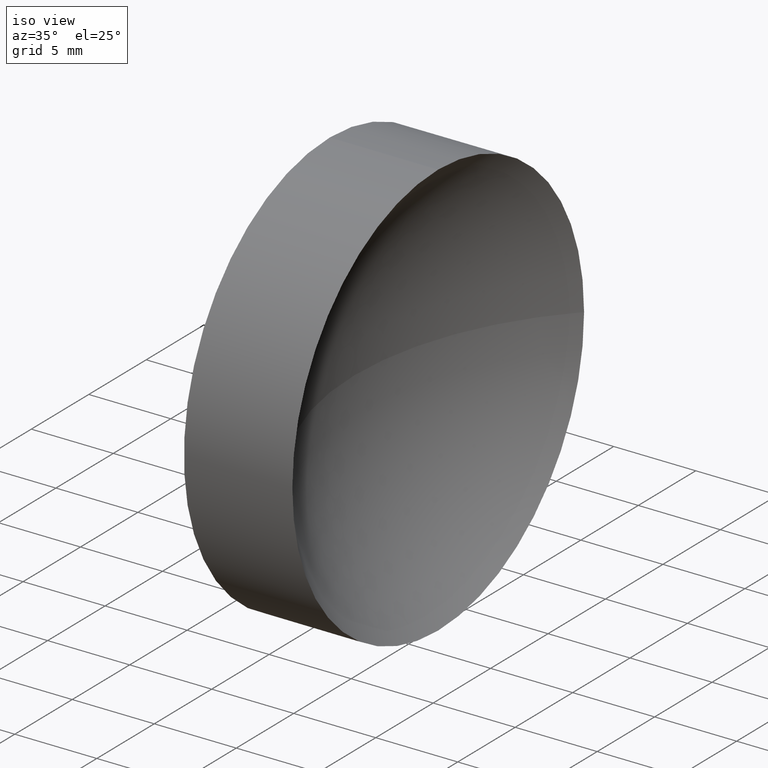
[diagram: clean part render]
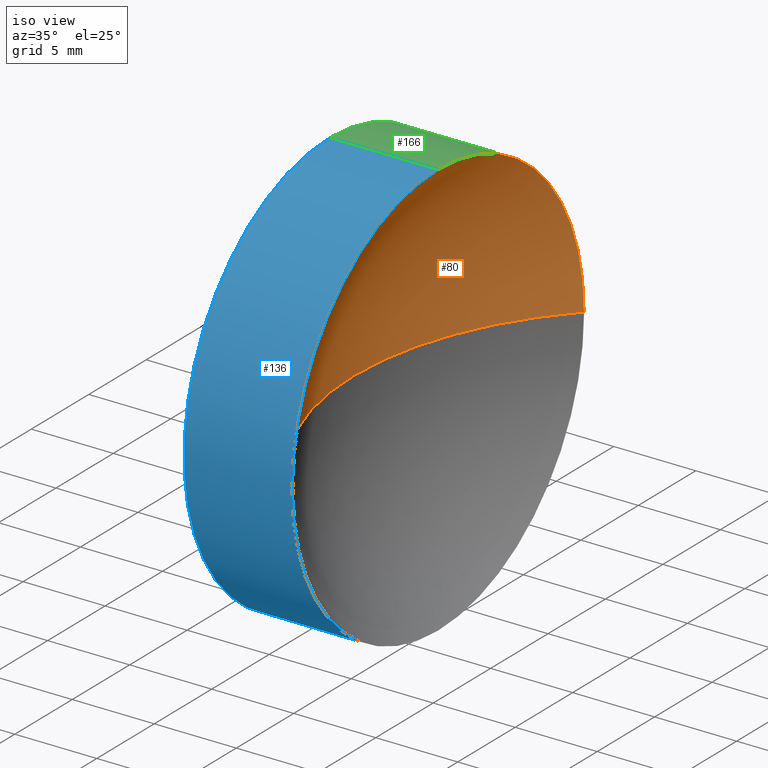
[diagram: same view with three faces highlighted in distinct colors, each labeled with its STEP entity id]
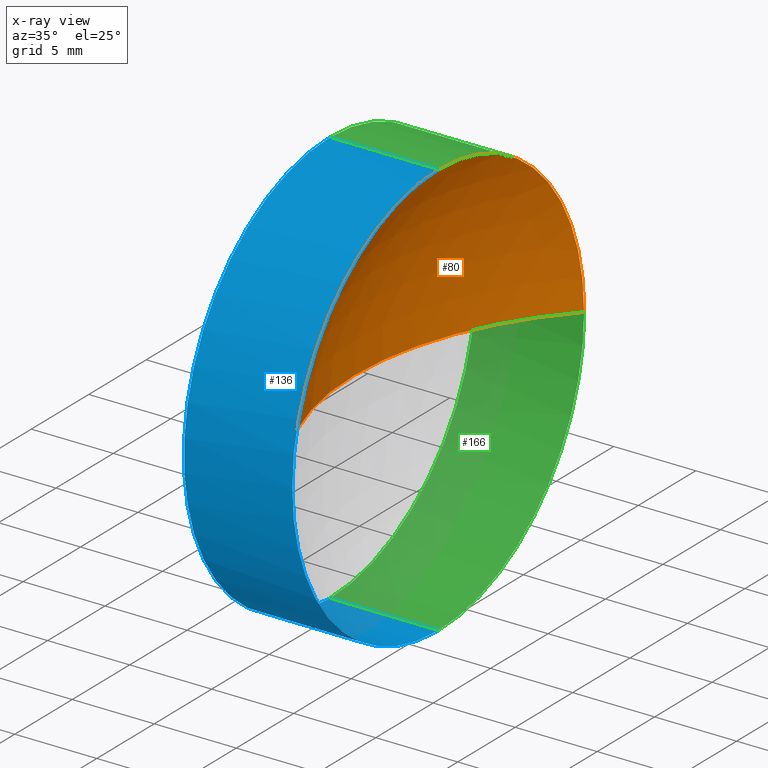
[diagram: x-ray of the same camera — body ghosted, the three highlighted faces saturated]
A machine part, iso view with three faces highlighted in distinct colors.
The next image is the same camera in x-ray (body ghosted, the three faces saturated) — at least one of them is partly hidden behind the body in this view.
Their STEP definitions:

[orange] entity #80 — the highlighted spherical surface has radius 18.34 mm.
#4 = CARTESIAN_POINT ( 'NONE',  ( 139.2029307920347200, 71.19398908659371700, 0.0000000000000000000 ) ) ;
#11 = CARTESIAN_POINT ( 'NONE',  ( 120.8629307920347200, 71.19398908659371700, 0.0000000000000000000 ) ) ;
#12 = EDGE_CURVE ( 'NONE', #167, #62, #173, .T. ) ;
#13 = AXIS2_PLACEMENT_3D ( 'NONE', #4, #126, #43 ) ;
#18 = CARTESIAN_POINT ( 'NONE',  ( 125.9716950220848900, 83.89398908659370600, 1.555301434917137400E-015 ) ) ;
#19 = CARTESIAN_POINT ( 'NONE',  ( 125.9716950220848900, 71.19398908659370300, 0.0000000000000000000 ) ) ;
#21 = VERTEX_POINT ( 'NONE', #45 ) ;
#32 = EDGE_CURVE ( 'NONE', #62, #133, #111, .T. ) ;
#33 = AXIS2_PLACEMENT_3D ( 'NONE', #19, #146, #159 ) ;
#37 = CARTESIAN_POINT ( 'NONE',  ( 139.2029307920347200, 71.19398908659371700, 0.0000000000000000000 ) ) ;
#43 = DIRECTION ( 'NONE',  ( 0.0000000000000000000, -1.000000000000000000, 0.0000000000000000000 ) ) ;
#45 = CARTESIAN_POINT ( 'NONE',  ( 125.9716950220848900, 58.49398908659371400, 0.0000000000000000000 ) ) ;
#51 = CARTESIAN_POINT ( 'NONE',  ( 125.9716950220848900, 71.19398908659370300, 12.70000000000000300 ) ) ;
#52 = EDGE_CURVE ( 'NONE', #21, #133, #130, .T. ) ;
#58 = DIRECTION ( 'NONE',  ( 0.0000000000000000000, -1.000000000000000000, -1.224646799147353000E-016 ) ) ;
#62 = VERTEX_POINT ( 'NONE', #18 ) ;
#71 = AXIS2_PLACEMENT_3D ( 'NONE', #127, #172, #77 ) ;
#77 = DIRECTION ( 'NONE',  ( 0.0000000000000000000, 0.0000000000000000000, 1.000000000000000000 ) ) ;
#78 = CARTESIAN_POINT ( 'NONE',  ( 139.2029307920347200, 71.19398908659371700, 0.0000000000000000000 ) ) ;
#80 = ADVANCED_FACE ( 'NONE', ( #135 ), #181, .F. ) ;
#91 = AXIS2_PLACEMENT_3D ( 'NONE', #78, #116, #128 ) ;
#96 = AXIS2_PLACEMENT_3D ( 'NONE', #37, #145, #58 ) ;
#106 = EDGE_LOOP ( 'NONE', ( #182, #152, #137, #115 ) ) ;
#111 = CIRCLE ( 'NONE', #96, 18.33999999999999600 ) ;
#115 = ORIENTED_EDGE ( 'NONE', *, *, #52, .T. ) ;
#116 = DIRECTION ( 'NONE',  ( 0.0000000000000000000, 0.0000000000000000000, -1.000000000000000000 ) ) ;
#126 = DIRECTION ( 'NONE',  ( 0.0000000000000000000, 0.0000000000000000000, 1.000000000000000000 ) ) ;
#127 = CARTESIAN_POINT ( 'NONE',  ( 125.9716950220848900, 71.19398908659370300, 0.0000000000000000000 ) ) ;
#128 = DIRECTION ( 'NONE',  ( -1.000000000000000000, 0.0000000000000000000, 0.0000000000000000000 ) ) ;
#130 = CIRCLE ( 'NONE', #91, 18.33999999999999600 ) ;
#133 = VERTEX_POINT ( 'NONE', #11 ) ;
#135 = FACE_OUTER_BOUND ( 'NONE', #106, .T. ) ;
#137 = ORIENTED_EDGE ( 'NONE', *, *, #158, .F. ) ;
#145 = DIRECTION ( 'NONE',  ( 0.0000000000000000000, -1.224646799147353200E-016, 1.000000000000000000 ) ) ;
#146 = DIRECTION ( 'NONE',  ( -1.000000000000000000, -0.0000000000000000000, -0.0000000000000000000 ) ) ;
#152 = ORIENTED_EDGE ( 'NONE', *, *, #12, .F. ) ;
#158 = EDGE_CURVE ( 'NONE', #21, #167, #163, .T. ) ;
#159 = DIRECTION ( 'NONE',  ( 0.0000000000000000000, 0.0000000000000000000, 1.000000000000000000 ) ) ;
#163 = CIRCLE ( 'NONE', #33, 12.70000000000000300 ) ;
#167 = VERTEX_POINT ( 'NONE', #51 ) ;
#172 = DIRECTION ( 'NONE',  ( -1.000000000000000000, -0.0000000000000000000, -0.0000000000000000000 ) ) ;
#173 = CIRCLE ( 'NONE', #71, 12.70000000000000300 ) ;
#181 = SPHERICAL_SURFACE ( 'NONE', #13, 18.33999999999999600 ) ;
#182 = ORIENTED_EDGE ( 'NONE', *, *, #32, .F. ) ;

[blue] entity #136 — the highlighted cylindrical surface (partial cylindrical patch) has radius 12.7 mm, axis along (-1, -0, -0).
#10 = CARTESIAN_POINT ( 'NONE',  ( 125.9716950220848900, 71.19398908659370300, 0.0000000000000000000 ) ) ;
#15 = DIRECTION ( 'NONE',  ( -1.000000000000000000, -0.0000000000000000000, -0.0000000000000000000 ) ) ;
#17 = ORIENTED_EDGE ( 'NONE', *, *, #110, .F. ) ;
#19 = CARTESIAN_POINT ( 'NONE',  ( 125.9716950220848900, 71.19398908659370300, 0.0000000000000000000 ) ) ;
#20 = CARTESIAN_POINT ( 'NONE',  ( 119.3629307920347200, 71.19398908659370300, 12.70000000000000300 ) ) ;
#21 = VERTEX_POINT ( 'NONE', #45 ) ;
#22 = ORIENTED_EDGE ( 'NONE', *, *, #180, .F. ) ;
#24 = VECTOR ( 'NONE', #15, 1000.000000000000000 ) ;
#26 = CARTESIAN_POINT ( 'NONE',  ( 111.9552297575605700, 71.19398908659370300, 0.0000000000000000000 ) ) ;
#29 = LINE ( 'NONE', #147, #24 ) ;
#30 = VERTEX_POINT ( 'NONE', #20 ) ;
#33 = AXIS2_PLACEMENT_3D ( 'NONE', #19, #146, #159 ) ;
#35 = CIRCLE ( 'NONE', #65, 12.70000000000000300 ) ;
#38 = EDGE_LOOP ( 'NONE', ( #22, #162, #155, #104, #17 ) ) ;
#40 = CARTESIAN_POINT ( 'NONE',  ( 125.9716950220848900, 71.19398908659370300, -12.70000000000000300 ) ) ;
#45 = CARTESIAN_POINT ( 'NONE',  ( 125.9716950220848900, 58.49398908659371400, 0.0000000000000000000 ) ) ;
#49 = CARTESIAN_POINT ( 'NONE',  ( 111.9552297575605700, 71.19398908659370300, -12.70000000000000300 ) ) ;
#51 = CARTESIAN_POINT ( 'NONE',  ( 125.9716950220848900, 71.19398908659370300, 12.70000000000000300 ) ) ;
#54 = DIRECTION ( 'NONE',  ( -1.000000000000000000, -0.0000000000000000000, -0.0000000000000000000 ) ) ;
#55 = EDGE_CURVE ( 'NONE', #167, #30, #29, .T. ) ;
#64 = DIRECTION ( 'NONE',  ( -1.000000000000000000, -0.0000000000000000000, -0.0000000000000000000 ) ) ;
#65 = AXIS2_PLACEMENT_3D ( 'NONE', #10, #54, #156 ) ;
#75 = AXIS2_PLACEMENT_3D ( 'NONE', #183, #94, #123 ) ;
#79 = VERTEX_POINT ( 'NONE', #122 ) ;
#86 = DIRECTION ( 'NONE',  ( 0.0000000000000000000, 0.0000000000000000000, 1.000000000000000000 ) ) ;
#88 = EDGE_CURVE ( 'NONE', #134, #21, #35, .T. ) ;
#93 = LINE ( 'NONE', #49, #139 ) ;
#94 = DIRECTION ( 'NONE',  ( -1.000000000000000000, -0.0000000000000000000, -0.0000000000000000000 ) ) ;
#104 = ORIENTED_EDGE ( 'NONE', *, *, #55, .T. ) ;
#105 = FACE_OUTER_BOUND ( 'NONE', #38, .T. ) ;
#110 = EDGE_CURVE ( 'NONE', #79, #30, #169, .T. ) ;
#114 = AXIS2_PLACEMENT_3D ( 'NONE', #26, #164, #86 ) ;
#122 = CARTESIAN_POINT ( 'NONE',  ( 119.3629307920347200, 71.19398908659370300, -12.70000000000000300 ) ) ;
#123 = DIRECTION ( 'NONE',  ( 0.0000000000000000000, 0.0000000000000000000, 1.000000000000000000 ) ) ;
#134 = VERTEX_POINT ( 'NONE', #40 ) ;
#136 = ADVANCED_FACE ( 'NONE', ( #105 ), #186, .T. ) ;
#139 = VECTOR ( 'NONE', #64, 1000.000000000000000 ) ;
#146 = DIRECTION ( 'NONE',  ( -1.000000000000000000, -0.0000000000000000000, -0.0000000000000000000 ) ) ;
#147 = CARTESIAN_POINT ( 'NONE',  ( 111.9552297575605700, 71.19398908659370300, 12.70000000000000300 ) ) ;
#155 = ORIENTED_EDGE ( 'NONE', *, *, #158, .T. ) ;
#156 = DIRECTION ( 'NONE',  ( 0.0000000000000000000, 0.0000000000000000000, 1.000000000000000000 ) ) ;
#158 = EDGE_CURVE ( 'NONE', #21, #167, #163, .T. ) ;
#159 = DIRECTION ( 'NONE',  ( 0.0000000000000000000, 0.0000000000000000000, 1.000000000000000000 ) ) ;
#162 = ORIENTED_EDGE ( 'NONE', *, *, #88, .T. ) ;
#163 = CIRCLE ( 'NONE', #33, 12.70000000000000300 ) ;
#164 = DIRECTION ( 'NONE',  ( -1.000000000000000000, -0.0000000000000000000, -0.0000000000000000000 ) ) ;
#167 = VERTEX_POINT ( 'NONE', #51 ) ;
#169 = CIRCLE ( 'NONE', #75, 12.70000000000000300 ) ;
#180 = EDGE_CURVE ( 'NONE', #134, #79, #93, .T. ) ;
#183 = CARTESIAN_POINT ( 'NONE',  ( 119.3629307920347200, 71.19398908659370300, 0.0000000000000000000 ) ) ;
#186 = CYLINDRICAL_SURFACE ( 'NONE', #114, 12.70000000000000300 ) ;

[green] entity #166 — the highlighted cylindrical surface (partial cylindrical patch) has radius 12.7 mm, axis along (-1, -0, -0).
#12 = EDGE_CURVE ( 'NONE', #167, #62, #173, .T. ) ;
#14 = AXIS2_PLACEMENT_3D ( 'NONE', #89, #103, #102 ) ;
#15 = DIRECTION ( 'NONE',  ( -1.000000000000000000, -0.0000000000000000000, -0.0000000000000000000 ) ) ;
#18 = CARTESIAN_POINT ( 'NONE',  ( 125.9716950220848900, 83.89398908659370600, 1.555301434917137400E-015 ) ) ;
#20 = CARTESIAN_POINT ( 'NONE',  ( 119.3629307920347200, 71.19398908659370300, 12.70000000000000300 ) ) ;
#24 = VECTOR ( 'NONE', #15, 1000.000000000000000 ) ;
#25 = CARTESIAN_POINT ( 'NONE',  ( 119.3629307920347200, 71.19398908659370300, 0.0000000000000000000 ) ) ;
#28 = ORIENTED_EDGE ( 'NONE', *, *, #55, .F. ) ;
#29 = LINE ( 'NONE', #147, #24 ) ;
#30 = VERTEX_POINT ( 'NONE', #20 ) ;
#31 = CARTESIAN_POINT ( 'NONE',  ( 125.9716950220848900, 71.19398908659370300, 0.0000000000000000000 ) ) ;
#40 = CARTESIAN_POINT ( 'NONE',  ( 125.9716950220848900, 71.19398908659370300, -12.70000000000000300 ) ) ;
#41 = EDGE_CURVE ( 'NONE', #62, #134, #73, .T. ) ;
#49 = CARTESIAN_POINT ( 'NONE',  ( 111.9552297575605700, 71.19398908659370300, -12.70000000000000300 ) ) ;
#50 = FACE_OUTER_BOUND ( 'NONE', #160, .T. ) ;
#51 = CARTESIAN_POINT ( 'NONE',  ( 125.9716950220848900, 71.19398908659370300, 12.70000000000000300 ) ) ;
#53 = CIRCLE ( 'NONE', #153, 12.70000000000000300 ) ;
#55 = EDGE_CURVE ( 'NONE', #167, #30, #29, .T. ) ;
#60 = DIRECTION ( 'NONE',  ( 0.0000000000000000000, 0.0000000000000000000, 1.000000000000000000 ) ) ;
#62 = VERTEX_POINT ( 'NONE', #18 ) ;
#64 = DIRECTION ( 'NONE',  ( -1.000000000000000000, -0.0000000000000000000, -0.0000000000000000000 ) ) ;
#67 = ORIENTED_EDGE ( 'NONE', *, *, #12, .T. ) ;
#69 = ORIENTED_EDGE ( 'NONE', *, *, #180, .T. ) ;
#71 = AXIS2_PLACEMENT_3D ( 'NONE', #127, #172, #77 ) ;
#73 = CIRCLE ( 'NONE', #118, 12.70000000000000300 ) ;
#77 = DIRECTION ( 'NONE',  ( 0.0000000000000000000, 0.0000000000000000000, 1.000000000000000000 ) ) ;
#79 = VERTEX_POINT ( 'NONE', #122 ) ;
#84 = CYLINDRICAL_SURFACE ( 'NONE', #14, 12.70000000000000300 ) ;
#87 = ORIENTED_EDGE ( 'NONE', *, *, #41, .T. ) ;
#89 = CARTESIAN_POINT ( 'NONE',  ( 111.9552297575605700, 71.19398908659370300, 0.0000000000000000000 ) ) ;
#92 = ORIENTED_EDGE ( 'NONE', *, *, #165, .F. ) ;
#93 = LINE ( 'NONE', #49, #139 ) ;
#102 = DIRECTION ( 'NONE',  ( 0.0000000000000000000, 0.0000000000000000000, 1.000000000000000000 ) ) ;
#103 = DIRECTION ( 'NONE',  ( -1.000000000000000000, -0.0000000000000000000, -0.0000000000000000000 ) ) ;
#117 = DIRECTION ( 'NONE',  ( -1.000000000000000000, -0.0000000000000000000, -0.0000000000000000000 ) ) ;
#118 = AXIS2_PLACEMENT_3D ( 'NONE', #31, #129, #60 ) ;
#122 = CARTESIAN_POINT ( 'NONE',  ( 119.3629307920347200, 71.19398908659370300, -12.70000000000000300 ) ) ;
#127 = CARTESIAN_POINT ( 'NONE',  ( 125.9716950220848900, 71.19398908659370300, 0.0000000000000000000 ) ) ;
#129 = DIRECTION ( 'NONE',  ( -1.000000000000000000, -0.0000000000000000000, -0.0000000000000000000 ) ) ;
#134 = VERTEX_POINT ( 'NONE', #40 ) ;
#139 = VECTOR ( 'NONE', #64, 1000.000000000000000 ) ;
#144 = DIRECTION ( 'NONE',  ( 0.0000000000000000000, 0.0000000000000000000, 1.000000000000000000 ) ) ;
#147 = CARTESIAN_POINT ( 'NONE',  ( 111.9552297575605700, 71.19398908659370300, 12.70000000000000300 ) ) ;
#153 = AXIS2_PLACEMENT_3D ( 'NONE', #25, #117, #144 ) ;
#160 = EDGE_LOOP ( 'NONE', ( #87, #69, #92, #28, #67 ) ) ;
#165 = EDGE_CURVE ( 'NONE', #30, #79, #53, .T. ) ;
#166 = ADVANCED_FACE ( 'NONE', ( #50 ), #84, .T. ) ;
#167 = VERTEX_POINT ( 'NONE', #51 ) ;
#172 = DIRECTION ( 'NONE',  ( -1.000000000000000000, -0.0000000000000000000, -0.0000000000000000000 ) ) ;
#173 = CIRCLE ( 'NONE', #71, 12.70000000000000300 ) ;
#180 = EDGE_CURVE ( 'NONE', #134, #79, #93, .T. ) ;